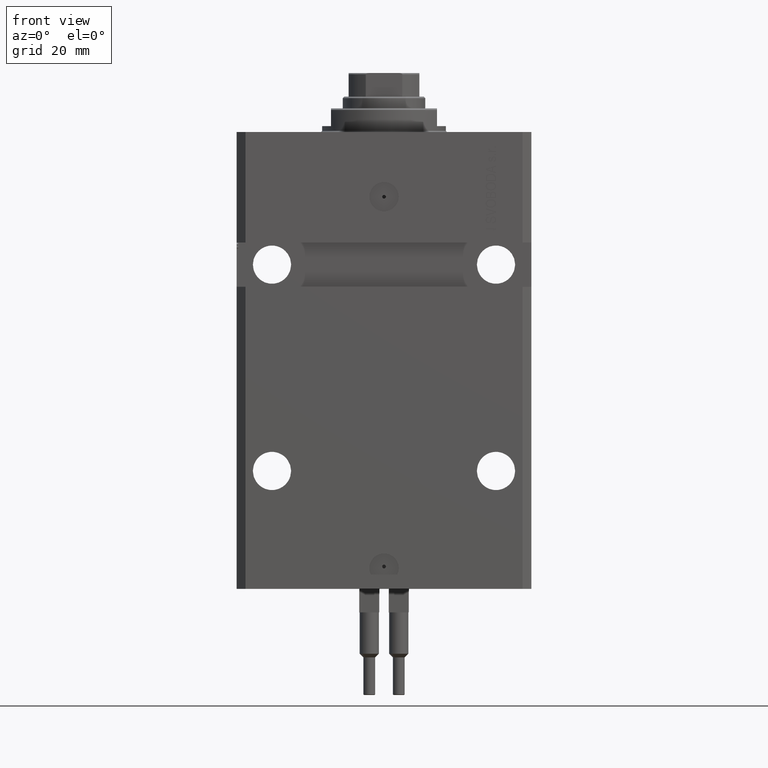
[diagram: clean part render]
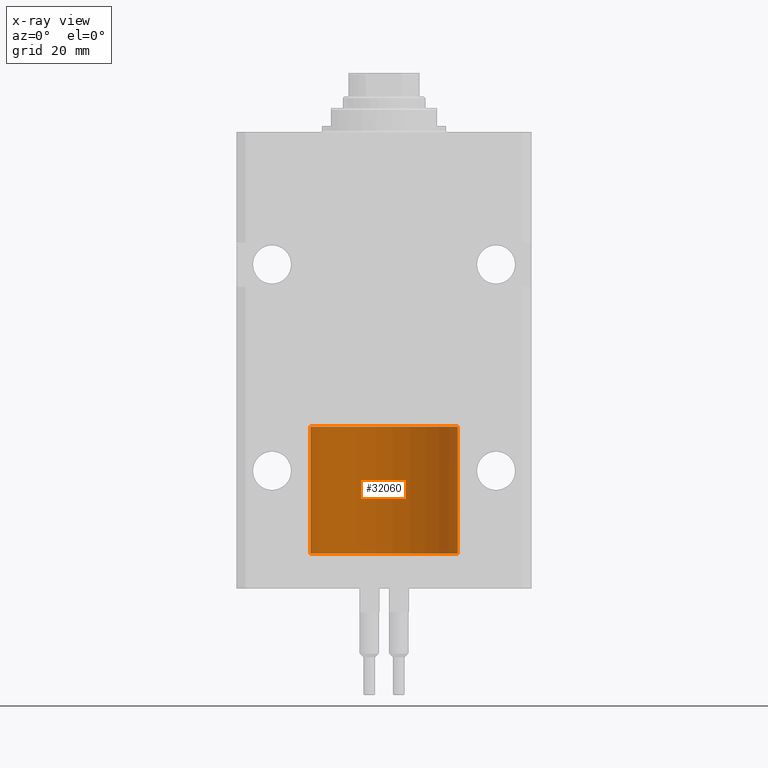
[diagram: x-ray — body ghosted, one internal face saturated and labeled with its STEP entity id]
A machine part, front view, then the same camera in x-ray: the body is ghosted and one INTERNAL B-rep face — a face not visible from any outside direction — is saturated and labeled: STEP entity #32060.
In plain terms, the highlighted cylindrical surface (partial cylindrical patch) has radius 25 mm, axis along (-0, -0, -1).
Its self-contained STEP definition (entity closure, byte-faithful):
#2586 = VERTEX_POINT ( 'NONE', #5307 ) ;
#3069 = DIRECTION ( 'NONE',  ( 1.000000000000000000, 0.000000000000000000, 0.000000000000000000 ) ) ;
#3170 = ORIENTED_EDGE ( 'NONE', *, *, #15545, .F. ) ;
#3560 = ORIENTED_EDGE ( 'NONE', *, *, #28192, .T. ) ;
#3996 = VERTEX_POINT ( 'NONE', #13919 ) ;
#5307 = CARTESIAN_POINT ( 'NONE',  ( 25.00000000000000000, 3.061616997868383043E-15, 43.10000000000000142 ) ) ;
#6795 = CARTESIAN_POINT ( 'NONE',  ( 0.000000000000000000, 0.000000000000000000, 43.10000000000000142 ) ) ;
#7264 = CARTESIAN_POINT ( 'NONE',  ( 0.000000000000000000, 0.000000000000000000, 0.000000000000000000 ) ) ;
#9126 = VECTOR ( 'NONE', #17238, 1000.000000000000000 ) ;
#10300 = CARTESIAN_POINT ( 'NONE',  ( -25.00000000000000000, 0.000000000000000000, 43.10000000000000142 ) ) ;
#10740 = DIRECTION ( 'NONE',  ( 0.000000000000000000, 0.000000000000000000, 1.000000000000000000 ) ) ;
#11094 = ORIENTED_EDGE ( 'NONE', *, *, #27440, .F. ) ;
#11469 = DIRECTION ( 'NONE',  ( 1.000000000000000000, 0.000000000000000000, 0.000000000000000000 ) ) ;
#11678 = CIRCLE ( 'NONE', #37788, 25.00000000000000000 ) ;
#13919 = CARTESIAN_POINT ( 'NONE',  ( -25.00000000000000000, 0.000000000000000000, 0.000000000000000000 ) ) ;
#14249 = AXIS2_PLACEMENT_3D ( 'NONE', #7264, #10740, #11469 ) ;
#14718 = VECTOR ( 'NONE', #41150, 1000.000000000000000 ) ;
#14986 = CARTESIAN_POINT ( 'NONE',  ( 25.00000000000000000, 3.061616997868383043E-15, 0.000000000000000000 ) ) ;
#15545 = EDGE_CURVE ( 'NONE', #2586, #42087, #11678, .T. ) ;
#16901 = CYLINDRICAL_SURFACE ( 'NONE', #40158, 25.00000000000000000 ) ;
#17142 = CARTESIAN_POINT ( 'NONE',  ( 0.000000000000000000, 0.000000000000000000, 43.10000000000000142 ) ) ;
#17166 = ORIENTED_EDGE ( 'NONE', *, *, #25191, .T. ) ;
#17238 = DIRECTION ( 'NONE',  ( -0.000000000000000000, -0.000000000000000000, -1.000000000000000000 ) ) ;
#20863 = FACE_OUTER_BOUND ( 'NONE', #26927, .T. ) ;
#22559 = CARTESIAN_POINT ( 'NONE',  ( 25.00000000000000000, 3.061616997868383043E-15, 43.10000000000000142 ) ) ;
#25191 = EDGE_CURVE ( 'NONE', #25945, #3996, #30830, .T. ) ;
#25945 = VERTEX_POINT ( 'NONE', #14986 ) ;
#26927 = EDGE_LOOP ( 'NONE', ( #3170, #3560, #17166, #11094 ) ) ;
#27440 = EDGE_CURVE ( 'NONE', #42087, #3996, #36313, .T. ) ;
#28192 = EDGE_CURVE ( 'NONE', #2586, #25945, #36933, .T. ) ;
#29089 = DIRECTION ( 'NONE',  ( 0.000000000000000000, 0.000000000000000000, 1.000000000000000000 ) ) ;
#30830 = CIRCLE ( 'NONE', #14249, 25.00000000000000000 ) ;
#32060 = ADVANCED_FACE ( 'NONE', ( #20863 ), #16901, .T. ) ;
#32250 = DIRECTION ( 'NONE',  ( -0.000000000000000000, -0.000000000000000000, -1.000000000000000000 ) ) ;
#36313 = LINE ( 'NONE', #10300, #9126 ) ;
#36933 = LINE ( 'NONE', #22559, #14718 ) ;
#37788 = AXIS2_PLACEMENT_3D ( 'NONE', #6795, #29089, #3069 ) ;
#40158 = AXIS2_PLACEMENT_3D ( 'NONE', #17142, #32250, #47379 ) ;
#41150 = DIRECTION ( 'NONE',  ( -0.000000000000000000, -0.000000000000000000, -1.000000000000000000 ) ) ;
#42087 = VERTEX_POINT ( 'NONE', #47792 ) ;
#47379 = DIRECTION ( 'NONE',  ( -1.000000000000000000, 0.000000000000000000, 0.000000000000000000 ) ) ;
#47792 = CARTESIAN_POINT ( 'NONE',  ( -25.00000000000000000, 0.000000000000000000, 43.10000000000000142 ) ) ;